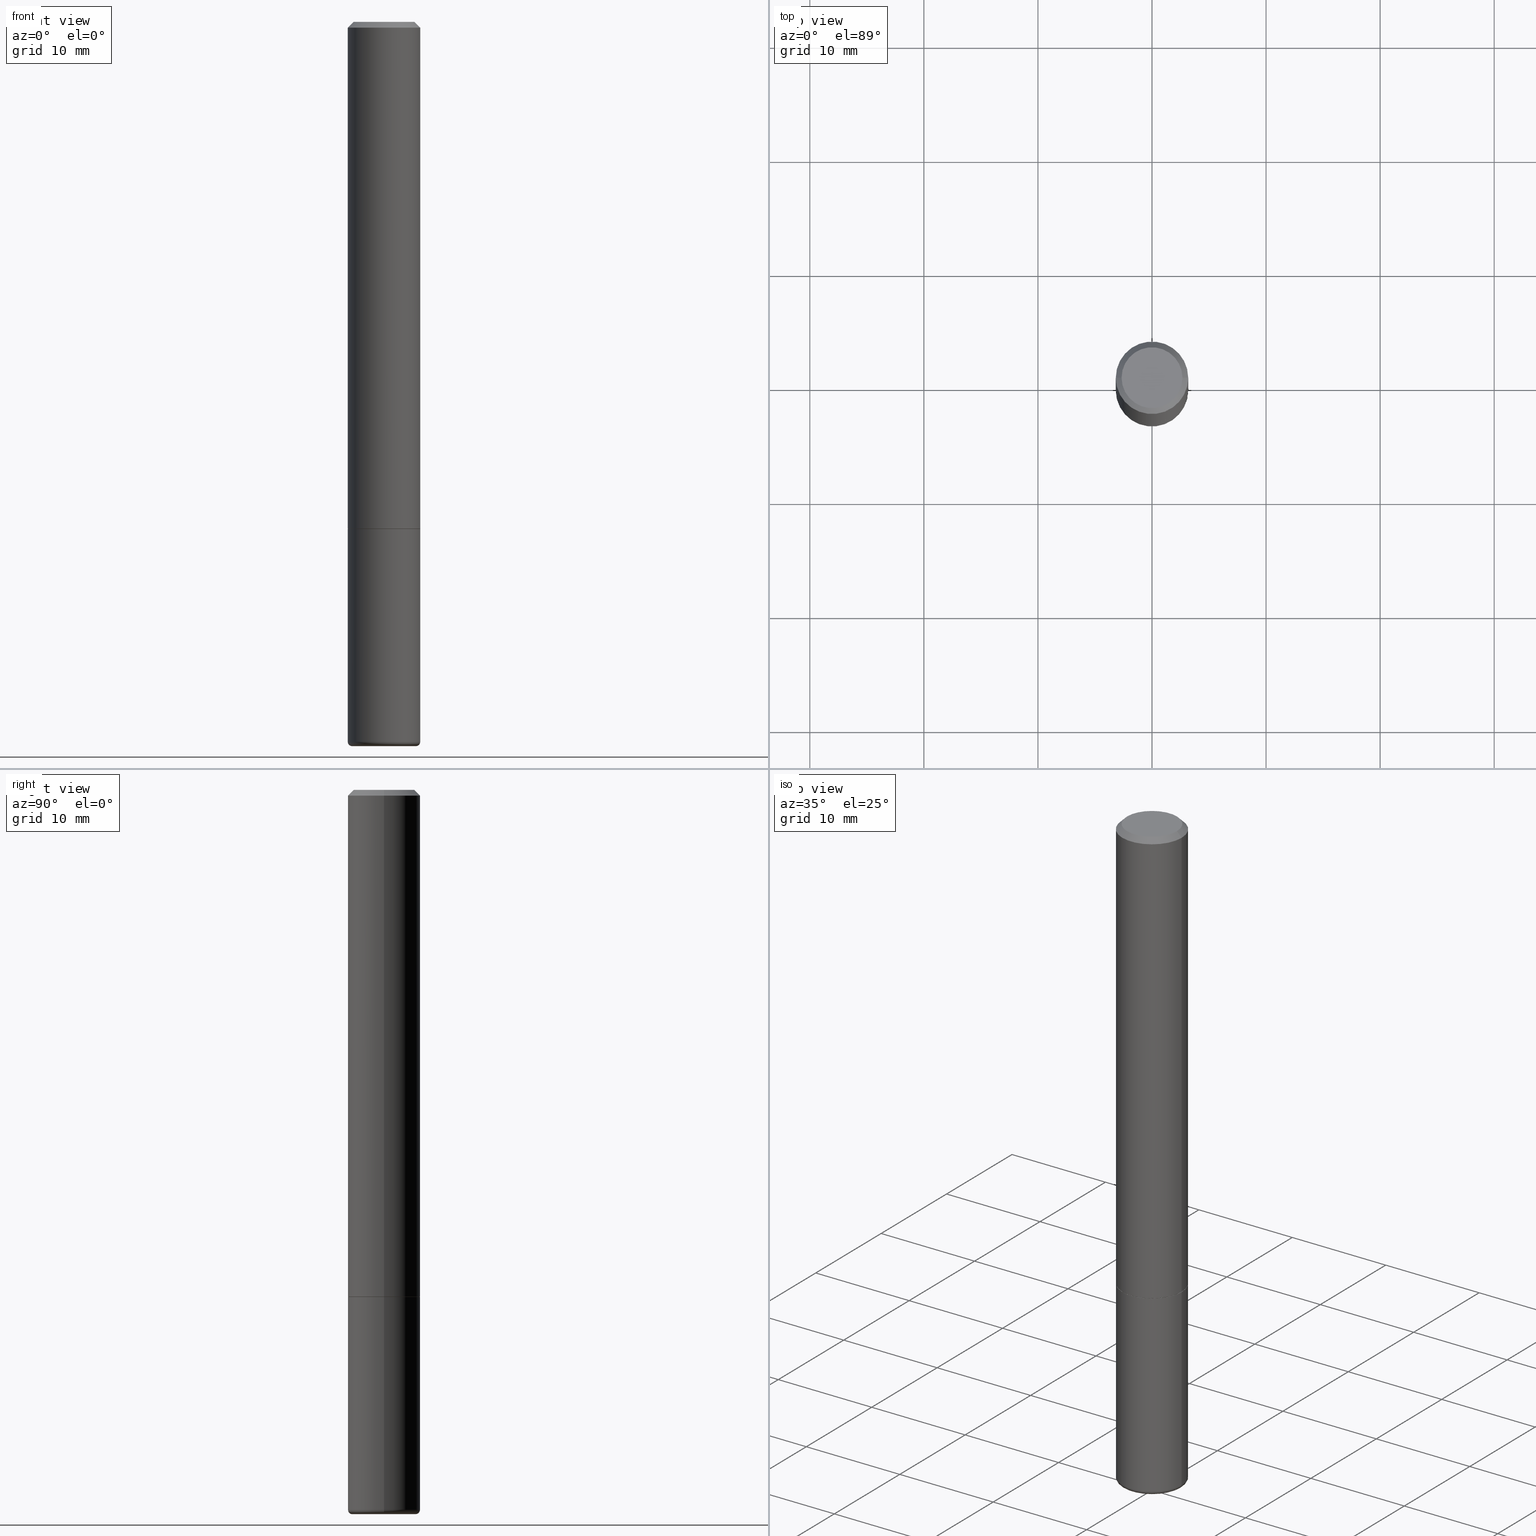
[diagram: canonical four-view strip — front | top / right | iso, engineering-drawing reading convention]
A machine part, canonical four-view strip (front | top / right | iso — engineering-drawing reading convention). The complete STEP part file that produces these views, byte-faithful:
ISO-10303-21;
HEADER;
FILE_DESCRIPTION (( 'STEP AP203' ),
    '1' );
FILE_NAME ('77117.STEP',
    '2024-03-06T16:02:04',
    ( '' ),
    ( '' ),
    'SwSTEP 2.0',
    'SolidWorks 2023',
    '' );
FILE_SCHEMA (( 'CONFIG_CONTROL_DESIGN' ));
ENDSEC;

DATA;
#1 = PERSON_AND_ORGANIZATION_ROLE ( 'classification_officer' ) ;
#2 = DIRECTION ( 'NONE',  ( -2.445468806185136597E-29, 3.491481338843145583E-15, 1.000000000000000000 ) ) ;
#3 = PERSON_AND_ORGANIZATION ( #250, #393 ) ;
#4 = CIRCLE ( 'NONE', #275, 0.1250000000000001943 ) ;
#5 = CARTESIAN_POINT ( 'NONE',  ( 0.1250000000000000555, -9.549201461736000019E-15, -2.484999999999999876 ) ) ;
#6 = DIRECTION ( 'NONE',  ( 1.000000000000000000, -6.982962677686266711E-15, 4.876176775795935793E-29 ) ) ;
#7 = ORIENTED_EDGE ( 'NONE', *, *, #259, .T. ) ;
#8 = DIRECTION ( 'NONE',  ( 1.000000000000000000, -6.982962677686267499E-15, 0.000000000000000000 ) ) ;
#9 = AXIS2_PLACEMENT_3D ( 'NONE', #234, #264, #361 ) ;
#10 = CC_DESIGN_SECURITY_CLASSIFICATION ( #186, ( #379 ) ) ;
#11 = DIRECTION ( 'NONE',  ( -2.445468806185136597E-29, 3.491481338843145583E-15, 1.000000000000000000 ) ) ;
#12 = MANIFOLD_SOLID_BREP ( 'Body-Move/Copy2[1]', #280 ) ;
#13 = CARTESIAN_POINT ( 'NONE',  ( 4.279570410823989044E-29, -6.110092342975505460E-15, -1.750000000000000222 ) ) ;
#14 = DIRECTION ( 'NONE',  ( -1.000000000000000000, 7.105427357600994759E-15, 0.000000000000000000 ) ) ;
#15 = CIRCLE ( 'NONE', #317, 0.1250000000000000000 ) ;
#16 = EDGE_CURVE ( 'NONE', #369, #212, #61, .T. ) ;
#17 = VERTEX_POINT ( 'NONE', #248 ) ;
#18 = ORIENTED_EDGE ( 'NONE', *, *, #333, .F. ) ;
#19 = EDGE_LOOP ( 'NONE', ( #241, #215, #366, #299 ) ) ;
#20 = DIRECTION ( 'NONE',  ( -1.000000000000000000, 6.982962677686267499E-15, 0.000000000000000000 ) ) ;
#21 = VERTEX_POINT ( 'NONE', #342 ) ;
#22 = CONICAL_SURFACE ( 'NONE', #200, 0.1239999999999999991, 0.7853981633976446775 ) ;
#23 = AXIS2_PLACEMENT_3D ( 'NONE', #73, #55, #20 ) ;
#24 = CALENDAR_DATE ( 2024, 6, 3 ) ;
#25 = CARTESIAN_POINT ( 'NONE',  ( 6.113672015462842613E-29, -8.728703347107864943E-15, -2.500000000000000000 ) ) ;
#26 = PERSON_AND_ORGANIZATION ( #250, #393 ) ;
#27 = DIRECTION ( 'NONE',  ( 1.000000000000000000, -6.982962677686262766E-15, 0.000000000000000000 ) ) ;
#28 = PERSON_AND_ORGANIZATION ( #250, #393 ) ;
#29 = CARTESIAN_POINT ( 'NONE',  ( 4.279570410823989044E-29, -6.110092342975505460E-15, -1.750000000000000222 ) ) ;
#30 = PERSON_AND_ORGANIZATION ( #250, #393 ) ;
#31 = APPLICATION_CONTEXT ( 'configuration controlled 3d designs of mechanical parts and assemblies' ) ;
#32 = CARTESIAN_POINT ( 'NONE',  ( 0.000000000000000000, 0.000000000000000000, 0.000000000000000000 ) ) ;
#33 = CARTESIAN_POINT ( 'NONE',  ( 4.279570410823988484E-29, -6.110092342975504671E-15, -1.750000000000000000 ) ) ;
#34 = CALENDAR_DATE ( 2024, 6, 3 ) ;
#35 = DIRECTION ( 'NONE',  ( -2.438088387897960049E-29, 3.491481338843145188E-15, 1.000000000000000000 ) ) ;
#36 = TOROIDAL_SURFACE ( 'NONE', #47, 0.1100000000000000006, 0.01500000000000012088 ) ;
#37 = CARTESIAN_POINT ( 'NONE',  ( 0.1239999999999999991, -6.975979715008601207E-15, -1.750000000000000000 ) ) ;
#38 = DIRECTION ( 'NONE',  ( -2.445468806185136597E-29, 3.491481338843145583E-15, 1.000000000000000000 ) ) ;
#39 = EDGE_LOOP ( 'NONE', ( #335, #143 ) ) ;
#40 = CARTESIAN_POINT ( 'NONE',  ( -0.1239999999999999991, -5.229019350632980447E-15, -1.750000000000000000 ) ) ;
#41 = CIRCLE ( 'NONE', #236, 0.1249999999999999584 ) ;
#42 = FACE_OUTER_BOUND ( 'NONE', #400, .T. ) ;
#43 =( CONVERSION_BASED_UNIT ( 'INCH', #375 ) LENGTH_UNIT ( ) NAMED_UNIT ( #219 ) );
#44 = DIRECTION ( 'NONE',  ( 7.105427357601001859E-15, 1.000000000000000000, -3.491481338843145583E-15 ) ) ;
#45 = EDGE_CURVE ( 'NONE', #368, #79, #338, .T. ) ;
#46 = ORIENTED_EDGE ( 'NONE', *, *, #166, .F. ) ;
#47 = AXIS2_PLACEMENT_3D ( 'NONE', #198, #394, #127 ) ;
#48 = ORIENTED_EDGE ( 'NONE', *, *, #45, .F. ) ;
#49 = EDGE_LOOP ( 'NONE', ( #364, #307 ) ) ;
#50 = ORIENTED_EDGE ( 'NONE', *, *, #374, .F. ) ;
#51 = ADVANCED_FACE ( 'NONE', ( #138 ), #316, .T. ) ;
#52 = DIRECTION ( 'NONE',  ( 1.000000000000000000, -6.982962677686267499E-15, 4.874400871621236533E-29 ) ) ;
#53 = CIRCLE ( 'NONE', #235, 0.1250000000000000000 ) ;
#54 = LOCAL_TIME ( 11, 2, 4.000000000000000000, #262 ) ;
#55 = DIRECTION ( 'NONE',  ( 2.445468806185136597E-29, -3.491481338843145583E-15, -1.000000000000000000 ) ) ;
#56 = LINE ( 'NONE', #161, #258 ) ;
#57 =( LENGTH_UNIT ( ) NAMED_UNIT ( * ) SI_UNIT ( $, .METRE. ) );
#58 = ADVANCED_FACE ( 'NONE', ( #292 ), #388, .T. ) ;
#59 = DIRECTION ( 'NONE',  ( -2.445468806185136597E-29, 3.491481338843145583E-15, 1.000000000000000000 ) ) ;
#60 = LINE ( 'NONE', #293, #386 ) ;
#61 = CIRCLE ( 'NONE', #377, 0.1250000000000001943 ) ;
#62 = AXIS2_PLACEMENT_3D ( 'NONE', #69, #38, #204 ) ;
#63 = CARTESIAN_POINT ( 'NONE',  ( 6.076989983370064174E-29, -8.676331127025216680E-15, -2.484999999999999876 ) ) ;
#64 = DIRECTION ( 'NONE',  ( 2.438088387897960049E-29, -3.491481338843145188E-15, -1.000000000000000000 ) ) ;
#65 = FACE_OUTER_BOUND ( 'NONE', #336, .T. ) ;
#66 = AXIS2_PLACEMENT_3D ( 'NONE', #323, #298, #173 ) ;
#67 = CARTESIAN_POINT ( 'NONE',  ( -0.1250000000000000000, 8.881784197001252323E-16, -6.148668862818632227E-30 ) ) ;
#68 = ADVANCED_FACE ( 'NONE', ( #192 ), #116, .T. ) ;
#69 = CARTESIAN_POINT ( 'NONE',  ( 4.279570410823988484E-29, -6.110092342975504671E-15, -1.750000000000000000 ) ) ;
#70 = DIRECTION ( 'NONE',  ( -2.445468806185136597E-29, 3.491481338843145583E-15, 1.000000000000000000 ) ) ;
#71 = VERTEX_POINT ( 'NONE', #119 ) ;
#72 = EDGE_CURVE ( 'NONE', #212, #17, #60, .T. ) ;
#73 = CARTESIAN_POINT ( 'NONE',  ( 4.890937612370288923E-31, -6.982962677686312563E-17, -0.02000000000000006287 ) ) ;
#74 = EDGE_LOOP ( 'NONE', ( #175, #100, #181, #179 ) ) ;
#75 = CC_DESIGN_DATE_AND_TIME_ASSIGNMENT ( #412, #154, ( #232 ) ) ;
#76 = VERTEX_POINT ( 'NONE', #313 ) ;
#77 = ORIENTED_EDGE ( 'NONE', *, *, #98, .T. ) ;
#78 = AXIS2_PLACEMENT_3D ( 'NONE', #92, #2, #52 ) ;
#79 = VERTEX_POINT ( 'NONE', #255 ) ;
#80 = MECHANICAL_CONTEXT ( 'NONE', #399, 'mechanical' ) ;
#81 = ORIENTED_EDGE ( 'NONE', *, *, #408, .T. ) ;
#82 = DIRECTION ( 'NONE',  ( -1.000000000000000000, 6.982962677686265922E-15, -4.876176775795935793E-29 ) ) ;
#83 = ORIENTED_EDGE ( 'NONE', *, *, #416, .F. ) ;
#84 = DIRECTION ( 'NONE',  ( 1.000000000000000000, 0.000000000000000000, 0.000000000000000000 ) ) ;
#85 = DIRECTION ( 'NONE',  ( -2.445468806185136597E-29, 3.491481338843145583E-15, 1.000000000000000000 ) ) ;
#86 = CIRCLE ( 'NONE', #78, 0.1050000000000000377 ) ;
#87 = CC_DESIGN_PERSON_AND_ORGANIZATION_ASSIGNMENT ( #356, #1, ( #186 ) ) ;
#88 = DIRECTION ( 'NONE',  ( 0.000000000000000000, 0.000000000000000000, 1.000000000000000000 ) ) ;
#89 = DIRECTION ( 'NONE',  ( 2.445468806185136597E-29, -3.491481338843145583E-15, -1.000000000000000000 ) ) ;
#90 = COORDINATED_UNIVERSAL_TIME_OFFSET ( 5, 0, .BEHIND. ) ;
#91 = ADVANCED_FACE ( 'NONE', ( #229 ), #320, .F. ) ;
#92 = CARTESIAN_POINT ( 'NONE',  ( 1.252621697202263706E-45, -1.788411804456536750E-31, -5.122214988120493535E-17 ) ) ;
#93 = CALENDAR_DATE ( 2024, 6, 3 ) ;
#94 = CARTESIAN_POINT ( 'NONE',  ( 1.252621697202263706E-45, -1.788411804456536750E-31, -5.122214988120493535E-17 ) ) ;
#95 = AXIS2_PLACEMENT_3D ( 'NONE', #25, #121, #415 ) ;
#96 = VECTOR ( 'NONE', #301, 39.37007874015748143 ) ;
#97 = FACE_OUTER_BOUND ( 'NONE', #19, .T. ) ;
#98 = EDGE_CURVE ( 'NONE', #278, #141, #380, .T. ) ;
#99 = LINE ( 'NONE', #67, #199 ) ;
#100 = ORIENTED_EDGE ( 'NONE', *, *, #374, .T. ) ;
#101 = LINE ( 'NONE', #129, #213 ) ;
#102 = AXIS2_PLACEMENT_3D ( 'NONE', #132, #357, #6 ) ;
#103 = DIRECTION ( 'NONE',  ( 1.000000000000000000, -6.982962677686262766E-15, 4.883557194083111780E-29 ) ) ;
#104 = DIRECTION ( 'NONE',  ( 1.000000000000000000, -6.982962677686262766E-15, 0.000000000000000000 ) ) ;
#105 = COORDINATED_UNIVERSAL_TIME_OFFSET ( 5, 0, .BEHIND. ) ;
#106 = AXIS2_PLACEMENT_3D ( 'NONE', #418, #411, #190 ) ;
#107 = ORIENTED_EDGE ( 'NONE', *, *, #332, .F. ) ;
#108 = ORIENTED_EDGE ( 'NONE', *, *, #120, .T. ) ;
#109 = VERTEX_POINT ( 'NONE', #187 ) ;
#110 = EDGE_CURVE ( 'NONE', #21, #76, #56, .T. ) ;
#111 = CONICAL_SURFACE ( 'NONE', #242, 0.1239999999999999991, 0.7853981633976446775 ) ;
#112 = DIRECTION ( 'NONE',  ( 1.000000000000000000, -6.982962677686267499E-15, 0.000000000000000000 ) ) ;
#113 = COORDINATED_UNIVERSAL_TIME_OFFSET ( 5, 0, .BEHIND. ) ;
#114 = ORIENTED_EDGE ( 'NONE', *, *, #283, .F. ) ;
#115 = DIRECTION ( 'NONE',  ( 1.000000000000000000, -6.982962677686267499E-15, 0.000000000000000000 ) ) ;
#116 = CYLINDRICAL_SURFACE ( 'NONE', #254, 0.1250000000000000000 ) ;
#117 = APPROVAL ( #240, 'UNSPECIFIED' ) ;
#118 = DIRECTION ( 'NONE',  ( -2.445468806185136597E-29, 3.491481338843145583E-15, 1.000000000000000000 ) ) ;
#119 = CARTESIAN_POINT ( 'NONE',  ( -0.1239999999999999991, -5.223720896284758045E-15, -1.750000000000000000 ) ) ;
#120 = EDGE_CURVE ( 'NONE', #140, #368, #294, .T. ) ;
#121 = DIRECTION ( 'NONE',  ( -2.445468806185136597E-29, 3.491481338843145583E-15, 1.000000000000000000 ) ) ;
#122 = EDGE_CURVE ( 'NONE', #21, #109, #86, .T. ) ;
#123 = CARTESIAN_POINT ( 'NONE',  ( 0.000000000000000000, 0.000000000000000000, 0.000000000000000000 ) ) ;
#124 = FACE_OUTER_BOUND ( 'NONE', #74, .T. ) ;
#125 = APPROVAL_PERSON_ORGANIZATION ( #410, #321, #407 ) ;
#126 = APPROVAL_DATE_TIME ( #325, #308 ) ;
#127 = DIRECTION ( 'NONE',  ( 1.000000000000000000, -6.982962677686262766E-15, 4.883557194083111780E-29 ) ) ;
#128 = UNCERTAINTY_MEASURE_WITH_UNIT (LENGTH_MEASURE( 1.000000000000000082E-05 ), #43, 'distance_accuracy_value', 'NONE');
#129 = CARTESIAN_POINT ( 'NONE',  ( 0.1249999999999999584, -9.273918764983043491E-16, -0.02000000000000006287 ) ) ;
#130 = ORIENTED_EDGE ( 'NONE', *, *, #272, .F. ) ;
#131 = CC_DESIGN_PERSON_AND_ORGANIZATION_ASSIGNMENT ( #3, #354, ( #379 ) ) ;
#132 = CARTESIAN_POINT ( 'NONE',  ( 0.000000000000000000, 0.000000000000000000, 0.000000000000000000 ) ) ;
#133 = AXIS2_PLACEMENT_3D ( 'NONE', #327, #263, #103 ) ;
#134 = AXIS2_PLACEMENT_3D ( 'NONE', #253, #189, #347 ) ;
#135 = DIRECTION ( 'NONE',  ( 1.000000000000000000, -6.982962677686265922E-15, 4.876176775795935793E-29 ) ) ;
#136 = PLANE ( 'NONE',  #296 ) ;
#137 = EDGE_LOOP ( 'NONE', ( #50, #276, #7, #178 ) ) ;
#138 = FACE_OUTER_BOUND ( 'NONE', #49, .T. ) ;
#139 = CC_DESIGN_APPROVAL ( #308, ( #186 ) ) ;
#140 = VERTEX_POINT ( 'NONE', #260 ) ;
#141 = VERTEX_POINT ( 'NONE', #156 ) ;
#142 = PRODUCT_RELATED_PRODUCT_CATEGORY ( 'detail', '', ( #277 ) ) ;
#143 = ORIENTED_EDGE ( 'NONE', *, *, #149, .T. ) ;
#144 = APPROVAL_STATUS ( 'not_yet_approved' ) ;
#145 = AXIS2_PLACEMENT_3D ( 'NONE', #350, #85, #252 ) ;
#146 = LOCAL_TIME ( 11, 2, 4.000000000000000000, #113 ) ;
#147 = ORIENTED_EDGE ( 'NONE', *, *, #417, .T. ) ;
#148 = PERSON_AND_ORGANIZATION ( #250, #393 ) ;
#149 = EDGE_CURVE ( 'NONE', #109, #21, #414, .T. ) ;
#150 = DIRECTION ( 'NONE',  ( -6.982962677686266711E-15, -1.000000000000000000, 3.491481338843145583E-15 ) ) ;
#151 = MANIFOLD_SOLID_BREP ( 'Body-Move/Copy2[2]', #406 ) ;
#152 =( NAMED_UNIT ( * ) PLANE_ANGLE_UNIT ( ) SI_UNIT ( $, .RADIAN. ) );
#153 = DIRECTION ( 'NONE',  ( -1.000000000000000000, 6.982962677686265922E-15, -4.876176775795935793E-29 ) ) ;
#154 = DATE_TIME_ROLE ( 'creation_date' ) ;
#155 = CIRCLE ( 'NONE', #345, 0.01500000000000012955 ) ;
#156 = CARTESIAN_POINT ( 'NONE',  ( 0.1250000000000000000, -6.982962677686288010E-15, -1.750000000000000222 ) ) ;
#157 = CIRCLE ( 'NONE', #134, 0.1100000000000000006 ) ;
#158 = APPROVAL_DATE_TIME ( #365, #117 ) ;
#159 = DIRECTION ( 'NONE',  ( 1.000000000000000000, -6.982962677686267499E-15, 4.874400871621236533E-29 ) ) ;
#160 = PERSON_AND_ORGANIZATION_ROLE ( 'creator' ) ;
#161 = CARTESIAN_POINT ( 'NONE',  ( -0.1249999999999999584, 8.030407079339200406E-16, -0.02000000000000006287 ) ) ;
#162 = CARTESIAN_POINT ( 'NONE',  ( 4.279570410823989044E-29, -6.110092342975505460E-15, -1.750000000000000222 ) ) ;
#163 = ORIENTED_EDGE ( 'NONE', *, *, #239, .T. ) ;
#164 = AXIS2_PLACEMENT_3D ( 'NONE', #123, #188, #382 ) ;
#165 = LOCAL_TIME ( 11, 2, 4.000000000000000000, #184 ) ;
#166 = EDGE_CURVE ( 'NONE', #140, #278, #155, .T. ) ;
#167 = FACE_OUTER_BOUND ( 'NONE', #284, .T. ) ;
#168 = ORIENTED_EDGE ( 'NONE', *, *, #383, .T. ) ;
#169 = CARTESIAN_POINT ( 'NONE',  ( 4.277124942017804562E-29, -6.106600861636661664E-15, -1.749000000000000110 ) ) ;
#170 = ORIENTED_EDGE ( 'NONE', *, *, #98, .F. ) ;
#171 = DIRECTION ( 'NONE',  ( 0.7071067811866863506, -2.468850131083710931E-15, 0.7071067811864086838 ) ) ;
#172 = LOCAL_TIME ( 11, 2, 4.000000000000000000, #90 ) ;
#173 = DIRECTION ( 'NONE',  ( 1.000000000000000000, -6.982962677686267499E-15, 0.000000000000000000 ) ) ;
#174 = EDGE_LOOP ( 'NONE', ( #245, #18 ) ) ;
#175 = ORIENTED_EDGE ( 'NONE', *, *, #346, .T. ) ;
#176 = VECTOR ( 'NONE', #349, 39.37007874015748143 ) ;
#177 = ADVANCED_FACE ( 'NONE', ( #353 ), #291, .T. ) ;
#178 = ORIENTED_EDGE ( 'NONE', *, *, #16, .F. ) ;
#179 = ORIENTED_EDGE ( 'NONE', *, *, #259, .F. ) ;
#180 = APPLICATION_PROTOCOL_DEFINITION ( 'international standard', 'config_control_design', 1994, #31 ) ;
#181 = ORIENTED_EDGE ( 'NONE', *, *, #359, .F. ) ;
#182 = ADVANCED_FACE ( 'NONE', ( #97 ), #322, .T. ) ;
#183 = CC_DESIGN_PERSON_AND_ORGANIZATION_ASSIGNMENT ( #26, #341, ( #277 ) ) ;
#184 = COORDINATED_UNIVERSAL_TIME_OFFSET ( 5, 0, .BEHIND. ) ;
#185 = AXIS2_PLACEMENT_3D ( 'NONE', #221, #44, #14 ) ;
#186 = SECURITY_CLASSIFICATION ( '', '', #381 ) ;
#187 = CARTESIAN_POINT ( 'NONE',  ( 0.1050000000000000377, -8.238720831321576644E-16, -5.122214988119949344E-17 ) ) ;
#188 = DIRECTION ( 'NONE',  ( -2.445468806185136597E-29, 3.491481338843145583E-15, 1.000000000000000000 ) ) ;
#189 = DIRECTION ( 'NONE',  ( -2.445468806185136597E-29, 3.491481338843145583E-15, 1.000000000000000000 ) ) ;
#190 = DIRECTION ( 'NONE',  ( -1.000000000000000000, 6.982962677686265922E-15, -4.876176775795935793E-29 ) ) ;
#191 = CIRCLE ( 'NONE', #9, 0.1239999999999999991 ) ;
#192 = FACE_OUTER_BOUND ( 'NONE', #238, .T. ) ;
#193 = APPROVAL_PERSON_ORGANIZATION ( #148, #117, #288 ) ;
#194 = DIRECTION ( 'NONE',  ( -2.445468806185136877E-29, 3.491481338843145188E-15, 1.000000000000000000 ) ) ;
#195 = DIRECTION ( 'NONE',  ( -2.445468806185136597E-29, 3.491481338843145583E-15, 1.000000000000000000 ) ) ;
#196 = SHAPE_DEFINITION_REPRESENTATION ( #329, #269 ) ;
#197 = ADVANCED_FACE ( 'NONE', ( #351 ), #111, .T. ) ;
#198 = CARTESIAN_POINT ( 'NONE',  ( 6.076989983370064174E-29, -8.676331127025216680E-15, -2.484999999999999876 ) ) ;
#199 = VECTOR ( 'NONE', #237, 39.37007874015748143 ) ;
#200 = AXIS2_PLACEMENT_3D ( 'NONE', #344, #70, #295 ) ;
#201 = DATE_TIME_ROLE ( 'classification_date' ) ;
#202 = EDGE_CURVE ( 'NONE', #278, #79, #53, .T. ) ;
#203 = CARTESIAN_POINT ( 'NONE',  ( 0.1239999999999999991, -6.975979715008601207E-15, -1.750000000000000000 ) ) ;
#204 = DIRECTION ( 'NONE',  ( 1.000000000000000000, -6.982962677686262766E-15, 0.000000000000000000 ) ) ;
#205 = ORIENTED_EDGE ( 'NONE', *, *, #45, .T. ) ;
#206 = CARTESIAN_POINT ( 'NONE',  ( 4.279570410823989044E-29, -6.110092342975505460E-15, -1.750000000000000222 ) ) ;
#207 = ADVANCED_FACE ( 'NONE', ( #124 ), #22, .T. ) ;
#208 = AXIS2_PLACEMENT_3D ( 'NONE', #94, #319, #159 ) ;
#209 = CARTESIAN_POINT ( 'NONE',  ( 4.890937612370288923E-31, -6.982962677686312563E-17, -0.02000000000000006287 ) ) ;
#210 = ORIENTED_EDGE ( 'NONE', *, *, #110, .T. ) ;
#211 = ORIENTED_EDGE ( 'NONE', *, *, #417, .F. ) ;
#212 = VERTEX_POINT ( 'NONE', #233 ) ;
#213 = VECTOR ( 'NONE', #362, 39.37007874015748143 ) ;
#214 = CC_DESIGN_APPROVAL ( #321, ( #232 ) ) ;
#215 = ORIENTED_EDGE ( 'NONE', *, *, #332, .T. ) ;
#216 = ADVANCED_FACE ( 'NONE', ( #65 ), #36, .T. ) ;
#217 = DIRECTION ( 'NONE',  ( -2.445468806185136597E-29, 3.491481338843145583E-15, 1.000000000000000000 ) ) ;
#218 = EDGE_LOOP ( 'NONE', ( #107, #251, #210, #147 ) ) ;
#219 = DIMENSIONAL_EXPONENTS ( 1.000000000000000000, 0.000000000000000000, 0.000000000000000000, 0.000000000000000000, 0.000000000000000000, 0.000000000000000000, 0.000000000000000000 ) ;
#220 = DATE_AND_TIME ( #249, #146 ) ;
#221 = CARTESIAN_POINT ( 'NONE',  ( -0.1100000000000000006, -7.894734117689105781E-15, -2.484999999999999876 ) ) ;
#222 = FACE_OUTER_BOUND ( 'NONE', #218, .T. ) ;
#223 = DIRECTION ( 'NONE',  ( 2.438088387897960049E-29, -3.491481338843145188E-15, -1.000000000000000000 ) ) ;
#224 = DIRECTION ( 'NONE',  ( 1.000000000000000000, -6.982962677686270655E-15, 0.000000000000000000 ) ) ;
#225 = DESIGN_CONTEXT ( 'detailed design', #31, 'design' ) ;
#226 = ADVANCED_FACE ( 'NONE', ( #42 ), #352, .T. ) ;
#227 = CARTESIAN_POINT ( 'NONE',  ( 4.890937612370288923E-31, -6.982962677686312563E-17, -0.02000000000000006287 ) ) ;
#228 = VECTOR ( 'NONE', #171, 39.37007874015748143 ) ;
#229 = FACE_OUTER_BOUND ( 'NONE', #405, .T. ) ;
#230 = APPROVAL_ROLE ( '' ) ;
#231 = CARTESIAN_POINT ( 'NONE',  ( 7.332110811570581229E-16, 0.1050000000000000377, -3.922166155191328542E-16 ) ) ;
#232 = PRODUCT_DEFINITION ( 'UNKNOWN', '', #379, #225 ) ;
#233 = CARTESIAN_POINT ( 'NONE',  ( 0.1250000000000001943, -6.979471196347446580E-15, -1.749000000000000110 ) ) ;
#234 = CARTESIAN_POINT ( 'NONE',  ( 4.279570410823988484E-29, -6.110092342975504671E-15, -1.750000000000000000 ) ) ;
#235 = AXIS2_PLACEMENT_3D ( 'NONE', #63, #59, #224 ) ;
#236 = AXIS2_PLACEMENT_3D ( 'NONE', #209, #217, #115 ) ;
#237 = DIRECTION ( 'NONE',  ( -2.445468806185136877E-29, 3.491481338843145188E-15, 1.000000000000000000 ) ) ;
#238 = EDGE_LOOP ( 'NONE', ( #114, #303, #77, #337 ) ) ;
#239 = EDGE_CURVE ( 'NONE', #369, #76, #363, .T. ) ;
#240 = APPROVAL_STATUS ( 'not_yet_approved' ) ;
#241 = ORIENTED_EDGE ( 'NONE', *, *, #149, .F. ) ;
#242 = AXIS2_PLACEMENT_3D ( 'NONE', #33, #257, #27 ) ;
#243 = ORIENTED_EDGE ( 'NONE', *, *, #202, .T. ) ;
#244 = EDGE_CURVE ( 'NONE', #17, #76, #289, .T. ) ;
#245 = ORIENTED_EDGE ( 'NONE', *, *, #346, .F. ) ;
#246 = VERTEX_POINT ( 'NONE', #203 ) ;
#247 = CIRCLE ( 'NONE', #62, 0.1239999999999999991 ) ;
#248 = CARTESIAN_POINT ( 'NONE',  ( 0.1249999999999999584, -9.273918764983043491E-16, -0.02000000000000006287 ) ) ;
#249 = CALENDAR_DATE ( 2024, 6, 3 ) ;
#250 = PERSON ( 'UNSPECIFIED', 'UNSPECIFIED', 'UNSPECIFIED', ('UNSPECIFIED'), ('UNSPECIFIED'), ('UNSPECIFIED') ) ;
#251 = ORIENTED_EDGE ( 'NONE', *, *, #122, .F. ) ;
#252 = DIRECTION ( 'NONE',  ( 1.000000000000000000, -6.982962677686267499E-15, 4.876176775795936353E-29 ) ) ;
#253 = CARTESIAN_POINT ( 'NONE',  ( 6.113672015462842613E-29, -8.728703347107864943E-15, -2.500000000000000000 ) ) ;
#254 = AXIS2_PLACEMENT_3D ( 'NONE', #32, #384, #376 ) ;
#255 = CARTESIAN_POINT ( 'NONE',  ( -0.1250000000000000555, -7.788152707325091448E-15, -2.484999999999999876 ) ) ;
#256 = CARTESIAN_POINT ( 'NONE',  ( 0.1100000000000000006, -9.444457021570706649E-15, -2.484999999999999876 ) ) ;
#257 = DIRECTION ( 'NONE',  ( -2.445468806185136597E-29, 3.491481338843145583E-15, 1.000000000000000000 ) ) ;
#258 = VECTOR ( 'NONE', #287, 39.37007874015748143 ) ;
#259 = EDGE_CURVE ( 'NONE', #246, #212, #300, .T. ) ;
#260 = CARTESIAN_POINT ( 'NONE',  ( 0.1100000000000000006, -9.496829241653354912E-15, -2.500000000000000000 ) ) ;
#261 = AXIS2_PLACEMENT_3D ( 'NONE', #281, #118, #334 ) ;
#262 = COORDINATED_UNIVERSAL_TIME_OFFSET ( 5, 0, .BEHIND. ) ;
#263 = DIRECTION ( 'NONE',  ( -2.445468806185136597E-29, 3.491481338843145583E-15, 1.000000000000000000 ) ) ;
#264 = DIRECTION ( 'NONE',  ( -2.445468806185136597E-29, 3.491481338843145583E-15, 1.000000000000000000 ) ) ;
#265 = CARTESIAN_POINT ( 'NONE',  ( -0.1100000000000000006, -7.867629522548422746E-15, -2.500000000000000000 ) ) ;
#266 = AXIS2_PLACEMENT_3D ( 'NONE', #29, #223, #153 ) ;
#267 = ADVANCED_FACE ( 'NONE', ( #389 ), #391, .F. ) ;
#268 = CYLINDRICAL_SURFACE ( 'NONE', #102, 0.1250000000000000000 ) ;
#269 = ADVANCED_BREP_SHAPE_REPRESENTATION ( '77117', ( #12, #151, #360 ), #348 ) ;
#270 = DIRECTION ( 'NONE',  ( -2.445468806185136597E-29, 3.491481338843145583E-15, 1.000000000000000000 ) ) ;
#271 = ORIENTED_EDGE ( 'NONE', *, *, #283, .T. ) ;
#272 = EDGE_CURVE ( 'NONE', #141, #409, #15, .T. ) ;
#273 = ORIENTED_EDGE ( 'NONE', *, *, #239, .F. ) ;
#274 = VECTOR ( 'NONE', #395, 39.37007874015748143 ) ;
#275 = AXIS2_PLACEMENT_3D ( 'NONE', #169, #270, #8 ) ;
#276 = ORIENTED_EDGE ( 'NONE', *, *, #333, .T. ) ;
#277 = PRODUCT ( '77117', '77117', '', ( #80 ) ) ;
#278 = VERTEX_POINT ( 'NONE', #5 ) ;
#279 = ORIENTED_EDGE ( 'NONE', *, *, #72, .T. ) ;
#280 = CLOSED_SHELL ( 'NONE', ( #305, #226, #91, #68, #216, #51 ) ) ;
#281 = CARTESIAN_POINT ( 'NONE',  ( 6.076989983370064174E-29, -8.676331127025216680E-15, -2.484999999999999876 ) ) ;
#282 = CIRCLE ( 'NONE', #261, 0.1250000000000000000 ) ;
#283 = EDGE_CURVE ( 'NONE', #79, #409, #99, .T. ) ;
#284 = EDGE_LOOP ( 'NONE', ( #243, #271, #130, #170 ) ) ;
#285 = CALENDAR_DATE ( 2024, 6, 3 ) ;
#286 = DIRECTION ( 'NONE',  ( -1.000000000000000000, 6.982962677686267499E-15, 0.000000000000000000 ) ) ;
#287 = DIRECTION ( 'NONE',  ( -0.7071067811865459074, 2.468850131082240100E-15, -0.7071067811865491270 ) ) ;
#288 = APPROVAL_ROLE ( '' ) ;
#289 = CIRCLE ( 'NONE', #66, 0.1249999999999999584 ) ;
#290 = APPROVAL_PERSON_ORGANIZATION ( #385, #308, #230 ) ;
#291 = CYLINDRICAL_SURFACE ( 'NONE', #164, 0.1250000000000000555 ) ;
#292 = FACE_OUTER_BOUND ( 'NONE', #340, .T. ) ;
#293 = CARTESIAN_POINT ( 'NONE',  ( 0.1250000000000000555, -8.728703347107838319E-16, 6.095220969744923244E-30 ) ) ;
#294 = CIRCLE ( 'NONE', #95, 0.1100000000000000006 ) ;
#295 = DIRECTION ( 'NONE',  ( 1.000000000000000000, -6.982962677686262766E-15, 0.000000000000000000 ) ) ;
#296 = AXIS2_PLACEMENT_3D ( 'NONE', #231, #64, #82 ) ;
#297 = APPROVAL_STATUS ( 'not_yet_approved' ) ;
#298 = DIRECTION ( 'NONE',  ( -2.445468806185136597E-29, 3.491481338843145583E-15, 1.000000000000000000 ) ) ;
#299 = ORIENTED_EDGE ( 'NONE', *, *, #110, .F. ) ;
#300 = LINE ( 'NONE', #37, #228 ) ;
#301 = DIRECTION ( 'NONE',  ( -0.7071067811866863506, 7.493145998870855876E-15, 0.7071067811864086838 ) ) ;
#302 = CARTESIAN_POINT ( 'NONE',  ( -0.1250000000000001943, -2.200036824506633304E-15, -1.749000000000000110 ) ) ;
#303 = ORIENTED_EDGE ( 'NONE', *, *, #416, .T. ) ;
#304 = ORIENTED_EDGE ( 'NONE', *, *, #272, .T. ) ;
#305 = ADVANCED_FACE ( 'NONE', ( #167 ), #268, .T. ) ;
#306 = ORIENTED_EDGE ( 'NONE', *, *, #72, .F. ) ;
#307 = ORIENTED_EDGE ( 'NONE', *, *, #408, .F. ) ;
#308 = APPROVAL ( #297, 'UNSPECIFIED' ) ;
#309 = EDGE_LOOP ( 'NONE', ( #273, #398, #279, #211 ) ) ;
#310 = AXIS2_PLACEMENT_3D ( 'NONE', #227, #89, #286 ) ;
#311 = APPLICATION_PROTOCOL_DEFINITION ( 'international standard', 'config_control_design', 1994, #399 ) ;
#312 = CONICAL_SURFACE ( 'NONE', #23, 0.1249999999999999584, 0.7853981633974460586 ) ;
#313 = CARTESIAN_POINT ( 'NONE',  ( -0.1249999999999999584, 8.030407079339200406E-16, -0.02000000000000006287 ) ) ;
#314 = DIRECTION ( 'NONE',  ( 1.000000000000000000, -6.982962677686207546E-15, 0.000000000000000000 ) ) ;
#315 = APPROVAL_DATE_TIME ( #220, #321 ) ;
#316 = PLANE ( 'NONE',  #106 ) ;
#317 = AXIS2_PLACEMENT_3D ( 'NONE', #162, #195, #330 ) ;
#318 = CIRCLE ( 'NONE', #387, 0.1250000000000000000 ) ;
#319 = DIRECTION ( 'NONE',  ( -2.445468806185136597E-29, 3.491481338843145583E-15, 1.000000000000000000 ) ) ;
#320 = PLANE ( 'NONE',  #266 ) ;
#321 = APPROVAL ( #144, 'UNSPECIFIED' ) ;
#322 = CONICAL_SURFACE ( 'NONE', #310, 0.1249999999999999584, 0.7853981633974460586 ) ;
#323 = CARTESIAN_POINT ( 'NONE',  ( 4.890937612370288923E-31, -6.982962677686312563E-17, -0.02000000000000006287 ) ) ;
#324 = LOCAL_TIME ( 11, 2, 4.000000000000000000, #105 ) ;
#325 = DATE_AND_TIME ( #93, #172 ) ;
#326 = CC_DESIGN_DATE_AND_TIME_ASSIGNMENT ( #358, #201, ( #186 ) ) ;
#327 = CARTESIAN_POINT ( 'NONE',  ( 6.076989983370064174E-29, -8.676331127025216680E-15, -2.484999999999999876 ) ) ;
#328 = CARTESIAN_POINT ( 'NONE',  ( -0.1250000000000000555, 8.881784197001256268E-16, -6.148668862818635730E-30 ) ) ;
#329 = PRODUCT_DEFINITION_SHAPE ( 'NONE', 'NONE',  #232 ) ;
#330 = DIRECTION ( 'NONE',  ( 1.000000000000000000, -6.982962677686262766E-15, 0.000000000000000000 ) ) ;
#331 = AXIS2_PLACEMENT_3D ( 'NONE', #206, #35, #135 ) ;
#332 = EDGE_CURVE ( 'NONE', #109, #17, #101, .T. ) ;
#333 = EDGE_CURVE ( 'NONE', #71, #246, #191, .T. ) ;
#334 = DIRECTION ( 'NONE',  ( 1.000000000000000000, -6.982962677686270655E-15, 0.000000000000000000 ) ) ;
#335 = ORIENTED_EDGE ( 'NONE', *, *, #122, .T. ) ;
#336 = EDGE_LOOP ( 'NONE', ( #48, #81, #392, #83 ) ) ;
#337 = ORIENTED_EDGE ( 'NONE', *, *, #383, .F. ) ;
#338 = CIRCLE ( 'NONE', #185, 0.01500000000000012955 ) ;
#339 = CC_DESIGN_PERSON_AND_ORGANIZATION_ASSIGNMENT ( #30, #160, ( #379 ) ) ;
#340 = EDGE_LOOP ( 'NONE', ( #403, #163, #372, #306 ) ) ;
#341 = PERSON_AND_ORGANIZATION_ROLE ( 'design_owner' ) ;
#342 = CARTESIAN_POINT ( 'NONE',  ( -0.1050000000000000377, 7.681258945454890818E-16, -5.122214988121018004E-17 ) ) ;
#343 = PERSON_AND_ORGANIZATION_ROLE ( 'creator' ) ;
#344 = CARTESIAN_POINT ( 'NONE',  ( 4.279570410823988484E-29, -6.110092342975504671E-15, -1.750000000000000000 ) ) ;
#345 = AXIS2_PLACEMENT_3D ( 'NONE', #256, #150, #314 ) ;
#346 = EDGE_CURVE ( 'NONE', #246, #71, #247, .T. ) ;
#347 = DIRECTION ( 'NONE',  ( 1.000000000000000000, -6.982962677686270655E-15, 0.000000000000000000 ) ) ;
#348 =( GEOMETRIC_REPRESENTATION_CONTEXT ( 3 ) GLOBAL_UNCERTAINTY_ASSIGNED_CONTEXT ( ( #128 ) ) GLOBAL_UNIT_ASSIGNED_CONTEXT ( ( #43, #152, #378 ) ) REPRESENTATION_CONTEXT ( 'NONE', 'WORKASPACE' ) );
#349 = DIRECTION ( 'NONE',  ( -2.445468806185136877E-29, 3.491481338843145188E-15, 1.000000000000000000 ) ) ;
#350 = CARTESIAN_POINT ( 'NONE',  ( 0.000000000000000000, 0.000000000000000000, 0.000000000000000000 ) ) ;
#351 = FACE_OUTER_BOUND ( 'NONE', #137, .T. ) ;
#352 = TOROIDAL_SURFACE ( 'NONE', #133, 0.1100000000000000006, 0.01500000000000012088 ) ;
#353 = FACE_OUTER_BOUND ( 'NONE', #309, .T. ) ;
#354 = PERSON_AND_ORGANIZATION_ROLE ( 'design_supplier' ) ;
#355 = FACE_OUTER_BOUND ( 'NONE', #39, .T. ) ;
#356 = PERSON_AND_ORGANIZATION ( #250, #393 ) ;
#357 = DIRECTION ( 'NONE',  ( -2.445468806185136597E-29, 3.491481338843145583E-15, 1.000000000000000000 ) ) ;
#358 = DATE_AND_TIME ( #34, #54 ) ;
#359 = EDGE_CURVE ( 'NONE', #212, #369, #4, .T. ) ;
#360 = AXIS2_PLACEMENT_3D ( 'NONE', #371, #88, #84 ) ;
#361 = DIRECTION ( 'NONE',  ( 1.000000000000000000, -6.982962677686262766E-15, 0.000000000000000000 ) ) ;
#362 = DIRECTION ( 'NONE',  ( 0.7071067811865459074, -7.319954787623249734E-15, -0.7071067811865491270 ) ) ;
#363 = LINE ( 'NONE', #328, #274 ) ;
#364 = ORIENTED_EDGE ( 'NONE', *, *, #120, .F. ) ;
#365 = DATE_AND_TIME ( #285, #324 ) ;
#366 = ORIENTED_EDGE ( 'NONE', *, *, #244, .T. ) ;
#367 = CC_DESIGN_APPROVAL ( #117, ( #379 ) ) ;
#368 = VERTEX_POINT ( 'NONE', #265 ) ;
#369 = VERTEX_POINT ( 'NONE', #302 ) ;
#370 = DIRECTION ( 'NONE',  ( -2.445468806185136597E-29, 3.491481338843145583E-15, 1.000000000000000000 ) ) ;
#371 = CARTESIAN_POINT ( 'NONE',  ( 0.000000000000000000, 0.000000000000000000, 0.000000000000000000 ) ) ;
#372 = ORIENTED_EDGE ( 'NONE', *, *, #244, .F. ) ;
#373 = CARTESIAN_POINT ( 'NONE',  ( 4.277124942017804562E-29, -6.106600861636661664E-15, -1.749000000000000110 ) ) ;
#374 = EDGE_CURVE ( 'NONE', #71, #369, #397, .T. ) ;
#375 = LENGTH_MEASURE_WITH_UNIT ( LENGTH_MEASURE( 0.02539999999999999897 ), #57 );
#376 = DIRECTION ( 'NONE',  ( 1.000000000000000000, -6.982962677686266711E-15, 4.876176775795935793E-29 ) ) ;
#377 = AXIS2_PLACEMENT_3D ( 'NONE', #373, #370, #112 ) ;
#378 =( NAMED_UNIT ( * ) SI_UNIT ( $, .STERADIAN. ) SOLID_ANGLE_UNIT ( ) );
#379 = PRODUCT_DEFINITION_FORMATION_WITH_SPECIFIED_SOURCE ( 'ANY', '', #277, .NOT_KNOWN. ) ;
#380 = LINE ( 'NONE', #413, #176 ) ;
#381 = SECURITY_CLASSIFICATION_LEVEL ( 'unclassified' ) ;
#382 = DIRECTION ( 'NONE',  ( 1.000000000000000000, -6.982962677686267499E-15, 4.876176775795936353E-29 ) ) ;
#383 = EDGE_CURVE ( 'NONE', #409, #141, #318, .T. ) ;
#384 = DIRECTION ( 'NONE',  ( -2.445468806185136597E-29, 3.491481338843145583E-15, 1.000000000000000000 ) ) ;
#385 = PERSON_AND_ORGANIZATION ( #250, #393 ) ;
#386 = VECTOR ( 'NONE', #194, 39.37007874015748143 ) ;
#387 = AXIS2_PLACEMENT_3D ( 'NONE', #13, #11, #104 ) ;
#388 = CYLINDRICAL_SURFACE ( 'NONE', #145, 0.1250000000000000555 ) ;
#389 = FACE_OUTER_BOUND ( 'NONE', #174, .T. ) ;
#390 = ADVANCED_FACE ( 'NONE', ( #355 ), #136, .F. ) ;
#391 = PLANE ( 'NONE',  #331 ) ;
#392 = ORIENTED_EDGE ( 'NONE', *, *, #166, .T. ) ;
#393 = ORGANIZATION ( 'UNSPECIFIED', 'UNSPECIFIED', '' ) ;
#394 = DIRECTION ( 'NONE',  ( -2.445468806185136597E-29, 3.491481338843145583E-15, 1.000000000000000000 ) ) ;
#395 = DIRECTION ( 'NONE',  ( -2.445468806185136877E-29, 3.491481338843145188E-15, 1.000000000000000000 ) ) ;
#396 = ADVANCED_FACE ( 'NONE', ( #222 ), #312, .T. ) ;
#397 = LINE ( 'NONE', #40, #96 ) ;
#398 = ORIENTED_EDGE ( 'NONE', *, *, #16, .T. ) ;
#399 = APPLICATION_CONTEXT ( 'configuration controlled 3d designs of mechanical parts and assemblies' ) ;
#400 = EDGE_LOOP ( 'NONE', ( #108, #205, #401, #46 ) ) ;
#401 = ORIENTED_EDGE ( 'NONE', *, *, #202, .F. ) ;
#402 = CC_DESIGN_PERSON_AND_ORGANIZATION_ASSIGNMENT ( #28, #343, ( #232 ) ) ;
#403 = ORIENTED_EDGE ( 'NONE', *, *, #359, .T. ) ;
#404 = CARTESIAN_POINT ( 'NONE',  ( -0.1250000000000000000, -6.505033315300235838E-15, -1.750000000000000222 ) ) ;
#405 = EDGE_LOOP ( 'NONE', ( #304, #168 ) ) ;
#406 = CLOSED_SHELL ( 'NONE', ( #207, #58, #182, #396, #177, #197, #267, #390 ) ) ;
#407 = APPROVAL_ROLE ( '' ) ;
#408 = EDGE_CURVE ( 'NONE', #368, #140, #157, .T. ) ;
#409 = VERTEX_POINT ( 'NONE', #404 ) ;
#410 = PERSON_AND_ORGANIZATION ( #250, #393 ) ;
#411 = DIRECTION ( 'NONE',  ( 2.438088387897960049E-29, -3.491481338843145188E-15, -1.000000000000000000 ) ) ;
#412 = DATE_AND_TIME ( #24, #165 ) ;
#413 = CARTESIAN_POINT ( 'NONE',  ( 0.1250000000000000000, -8.728703347107833388E-16, 6.095220969744919741E-30 ) ) ;
#414 = CIRCLE ( 'NONE', #208, 0.1050000000000000377 ) ;
#415 = DIRECTION ( 'NONE',  ( 1.000000000000000000, -6.982962677686270655E-15, 0.000000000000000000 ) ) ;
#416 = EDGE_CURVE ( 'NONE', #79, #278, #282, .T. ) ;
#417 = EDGE_CURVE ( 'NONE', #76, #17, #41, .T. ) ;
#418 = CARTESIAN_POINT ( 'NONE',  ( 6.113672015462842613E-29, -8.728703347107864943E-15, -2.500000000000000000 ) ) ;
ENDSEC;
END-ISO-10303-21;
